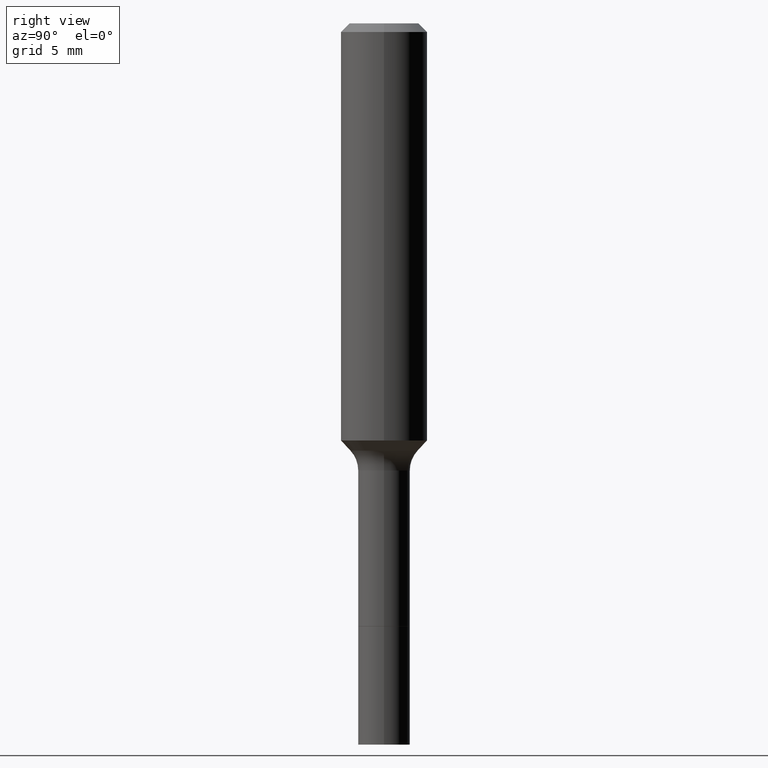
[diagram: clean part render]
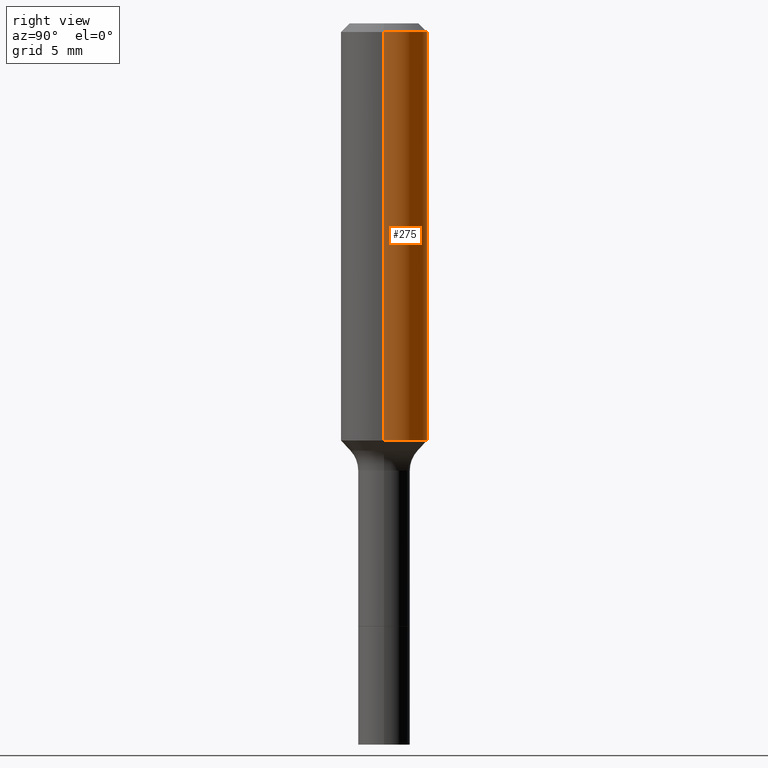
[diagram: same view with one face highlighted and labeled with its STEP entity id]
A machine part, right view. The second image highlights one B-rep face of the part: STEP entity #275.
In plain terms, the highlighted cylindrical surface (partial cylindrical patch) has radius 2.9997 mm, axis along (-0, 0, 1).
Its self-contained STEP definition (entity closure, byte-faithful):
#19 = DIRECTION ( 'NONE',  ( 1.000000000000000000, -6.982962677686265133E-15, 0.000000000000000000 ) ) ;
#33 = VERTEX_POINT ( 'NONE', #511 ) ;
#35 = ORIENTED_EDGE ( 'NONE', *, *, #309, .F. ) ;
#43 = CYLINDRICAL_SURFACE ( 'NONE', #257, 0.1181000000000000660 ) ;
#44 = VERTEX_POINT ( 'NONE', #297 ) ;
#70 = DIRECTION ( 'NONE',  ( -2.445468806185136597E-29, 3.491481338843145583E-15, 1.000000000000000000 ) ) ;
#71 = ORIENTED_EDGE ( 'NONE', *, *, #279, .F. ) ;
#91 = DIRECTION ( 'NONE',  ( 1.000000000000000000, -6.982962677686266711E-15, 4.876176775795936353E-29 ) ) ;
#99 = CARTESIAN_POINT ( 'NONE',  ( 5.776197320209328408E-31, -8.246878922347560526E-17, -0.02362000000000014435 ) ) ;
#105 = LINE ( 'NONE', #108, #210 ) ;
#108 = CARTESIAN_POINT ( 'NONE',  ( -0.1181000000000000660, 8.391509709326787887E-16, -5.809262341591047287E-30 ) ) ;
#141 = CARTESIAN_POINT ( 'NONE',  ( 0.000000000000000000, 0.000000000000000000, 0.000000000000000000 ) ) ;
#156 = VECTOR ( 'NONE', #447, 39.37007874015748143 ) ;
#193 = DIRECTION ( 'NONE',  ( -2.445468806185136877E-29, 3.491481338843145188E-15, 1.000000000000000000 ) ) ;
#208 = EDGE_CURVE ( 'NONE', #436, #33, #362, .T. ) ;
#210 = VECTOR ( 'NONE', #193, 39.37007874015748143 ) ;
#211 = DIRECTION ( 'NONE',  ( -2.445468806185136597E-29, 3.491481338843145583E-15, 1.000000000000000000 ) ) ;
#223 = CARTESIAN_POINT ( 'NONE',  ( -0.1180999999999999966, -1.189290997823139379E-15, -0.02362000000000014435 ) ) ;
#227 = DIRECTION ( 'NONE',  ( 1.000000000000000000, -6.982962677686266711E-15, 0.000000000000000000 ) ) ;
#239 = AXIS2_PLACEMENT_3D ( 'NONE', #472, #70, #19 ) ;
#248 = FACE_OUTER_BOUND ( 'NONE', #328, .T. ) ;
#257 = AXIS2_PLACEMENT_3D ( 'NONE', #141, #211, #91 ) ;
#266 = CIRCLE ( 'NONE', #329, 0.1180999999999999966 ) ;
#275 = ADVANCED_FACE ( 'NONE', ( #248 ), #43, .T. ) ;
#279 = EDGE_CURVE ( 'NONE', #436, #44, #361, .T. ) ;
#291 = ORIENTED_EDGE ( 'NONE', *, *, #427, .T. ) ;
#297 = CARTESIAN_POINT ( 'NONE',  ( 0.1180999999999999966, -9.071566814582237199E-16, -0.02362000000000014435 ) ) ;
#309 = EDGE_CURVE ( 'NONE', #44, #365, #266, .T. ) ;
#328 = EDGE_LOOP ( 'NONE', ( #388, #291, #35, #71 ) ) ;
#329 = AXIS2_PLACEMENT_3D ( 'NONE', #99, #342, #227 ) ;
#342 = DIRECTION ( 'NONE',  ( -2.445468806185136597E-29, 3.491481338843145583E-15, 1.000000000000000000 ) ) ;
#361 = LINE ( 'NONE', #453, #156 ) ;
#362 = CIRCLE ( 'NONE', #239, 0.1181000000000001354 ) ;
#365 = VERTEX_POINT ( 'NONE', #223 ) ;
#388 = ORIENTED_EDGE ( 'NONE', *, *, #208, .T. ) ;
#420 = CARTESIAN_POINT ( 'NONE',  ( 0.1181000000000001354, -4.799103040522910324E-15, -1.138317740402138289 ) ) ;
#427 = EDGE_CURVE ( 'NONE', #33, #365, #105, .T. ) ;
#436 = VERTEX_POINT ( 'NONE', #420 ) ;
#447 = DIRECTION ( 'NONE',  ( -2.445468806185136877E-29, 3.491481338843145188E-15, 1.000000000000000000 ) ) ;
#453 = CARTESIAN_POINT ( 'NONE',  ( 0.1181000000000000660, -8.246878922347485584E-16, 5.758764772215003944E-30 ) ) ;
#472 = CARTESIAN_POINT ( 'NONE',  ( 2.783720525680578917E-29, -3.974415148288161272E-15, -1.138317740402138289 ) ) ;
#511 = CARTESIAN_POINT ( 'NONE',  ( -0.1181000000000001354, -3.135264177355482681E-15, -1.138317740402138289 ) ) ;